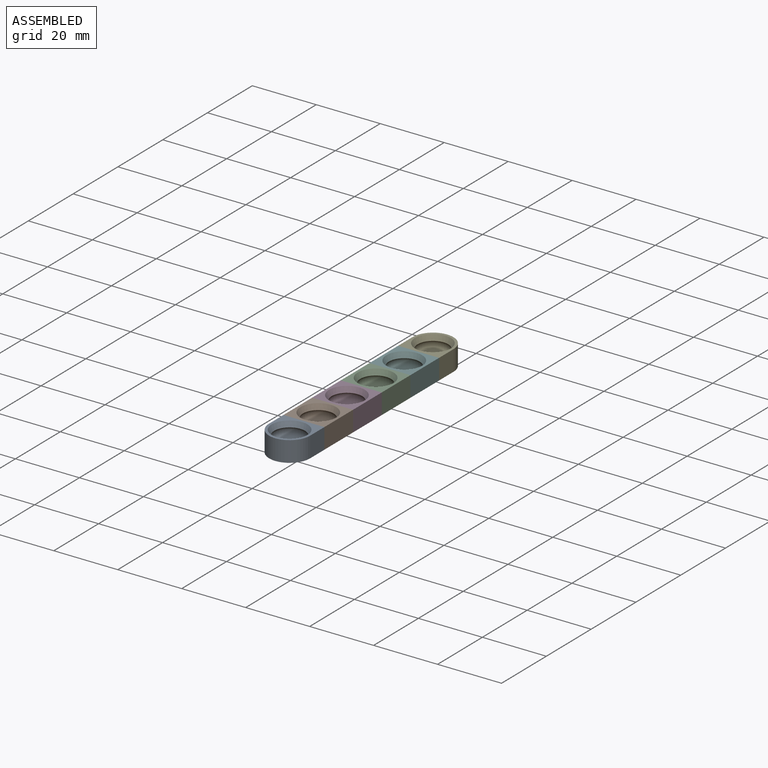
[diagram: assembled view]
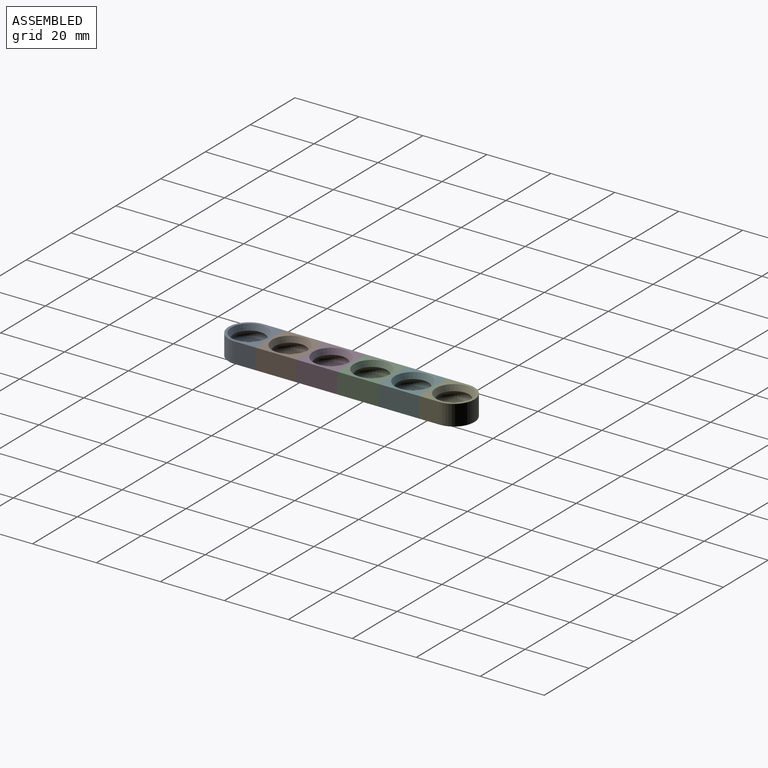
[diagram: assembled view, second angle]
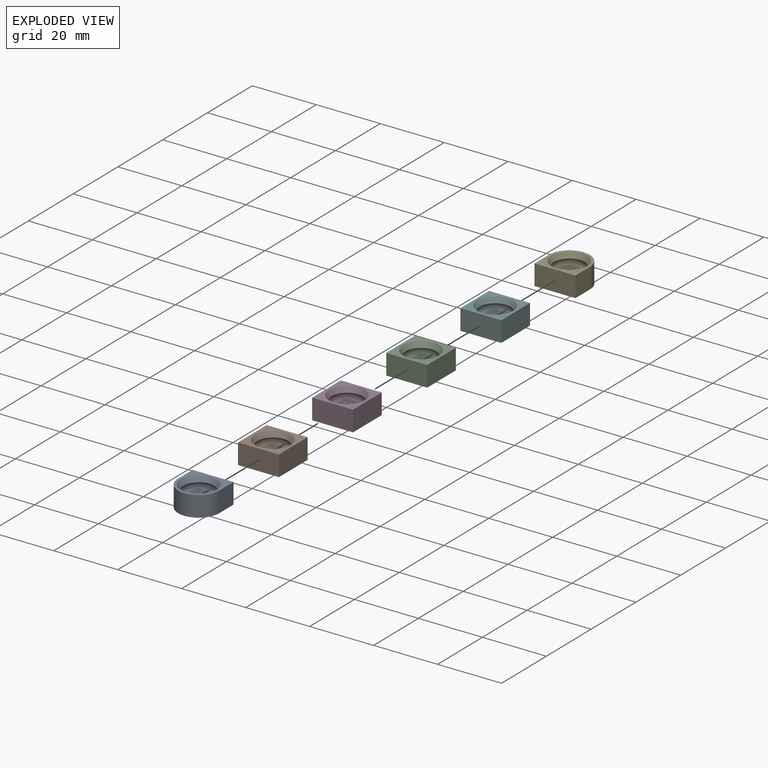
[diagram: exploded view]
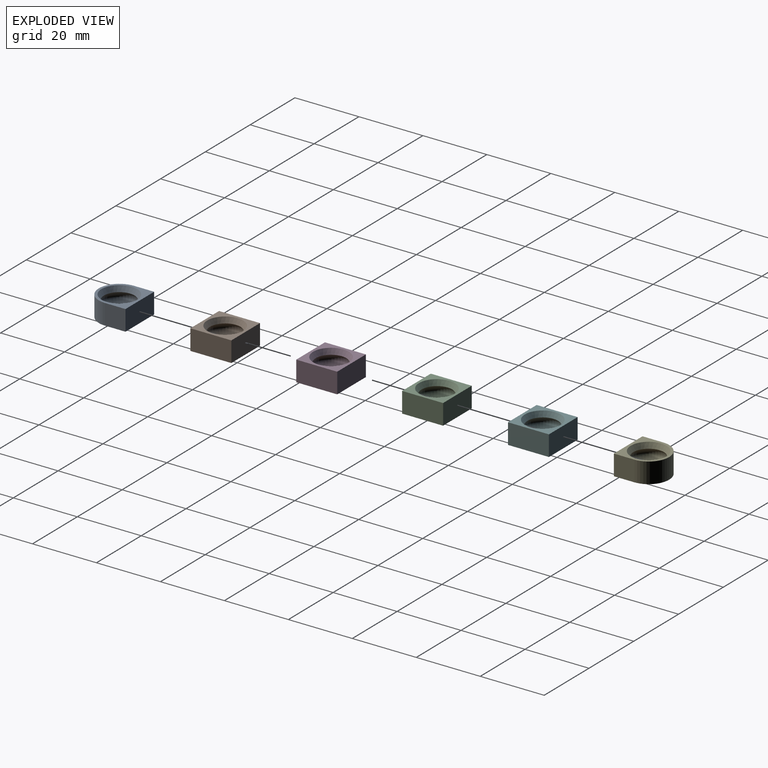
[diagram: exploded view, second angle]
ASSEMBLY  parts=6 mates=5
PART A: 9 faces, bbox 12.8x12.8x6.4 mm
  f0: cylinder r=6.4mm len=12.8mm, axis (0,0,-1), area 128.7mm2, adj f1,f5,f6,f8
  f1: plane 12.8x12.8mm, normal (0,0,-1), area 47.7mm2, adj f0,f2,f6,f7,f8
  f2: cone r=5.6mm half-angle=26.6deg, axis (0,0,-1), area 58.4mm2, adj f1,f3
  f3: torus R=3.6mm, axis (0,0,-1), area 124.1mm2, adj f2,f4
  f4: cone r=5.6mm half-angle=26.6deg, axis (0,0,1), area 58.4mm2, adj f3,f5
  f5: plane 12.8x12.8mm, normal (0,0,1), area 47.7mm2, adj f0,f4,f6,f7,f8
  f6: plane 6.4x6.4mm, normal (-1,0,0), area 41mm2, adj f0,f1,f5,f7
  f7: plane 12.8x6.4mm, normal (0,-1,0), area 81.9mm2, adj f1,f5,f6,f8
  f8: plane 6.4x6.4mm, normal (1,0,0), area 41mm2, adj f0,f1,f5,f7
PART B: 9 faces, bbox 12.8x12.8x6.4 mm
  f0: plane 12.8x12.8mm, normal (0,0,-1), area 65.3mm2, adj f1,f5,f6,f7,f8
  f1: cone r=5.6mm half-angle=26.6deg, axis (0,0,-1), area 58.4mm2, adj f0,f2
  f2: torus R=3.6mm, axis (0,0,-1), area 124.1mm2, adj f1,f3
  f3: cone r=5.6mm half-angle=26.6deg, axis (0,0,1), area 58.4mm2, adj f2,f4
  f4: plane 12.8x12.8mm, normal (0,0,1), area 65.3mm2, adj f3,f5,f6,f7,f8
  f5: plane 12.8x6.4mm, normal (1,0,0), area 81.9mm2, adj f0,f4,f6,f8
  f6: plane 12.8x6.4mm, normal (0,1,0), area 81.9mm2, adj f0,f4,f5,f7
  f7: plane 12.8x6.4mm, normal (-1,0,0), area 81.9mm2, adj f0,f4,f6,f8
  f8: plane 12.8x6.4mm, normal (0,-1,0), area 81.9mm2, adj f0,f4,f5,f7
PART C: same geometry as B
PART D: same geometry as B
PART E: same geometry as A
PART F: same geometry as B
PLACE A rot(axis=(0,0,1),180deg) t=(-3.29,13.44,1.96)mm
PLACE B t=(-3.29,-21.76,1.96)mm
PLACE C t=(-3.29,3.84,1.96)mm
PLACE D t=(-3.29,-8.96,1.96)mm
PLACE E t=(-3.29,13.44,1.96)mm
PLACE F t=(-3.29,16.64,1.96)mm
MATE fastened E.f7 <-> F.f6  axis (0,-1,0) through (-3.29,39.04,5.16)mm
MATE fastened C.f8 <-> D.f6  axis (0,-1,0) through (-3.29,13.44,5.16)mm
MATE fastened F.f8 <-> C.f6  axis (0,-1,0) through (-3.29,26.24,5.16)mm
MATE fastened D.f8 <-> B.f6  axis (0,-1,0) through (-3.29,0.64,5.16)mm
MATE fastened A.f7 <-> B.f8  axis (0,1,0) through (-3.29,-12.16,5.16)mm
